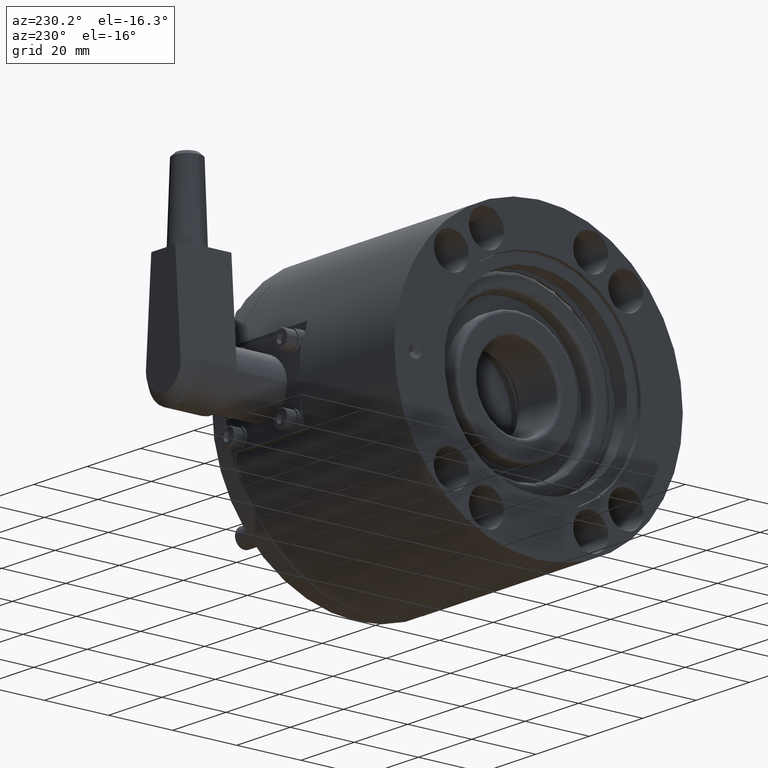
[diagram: clean part render]
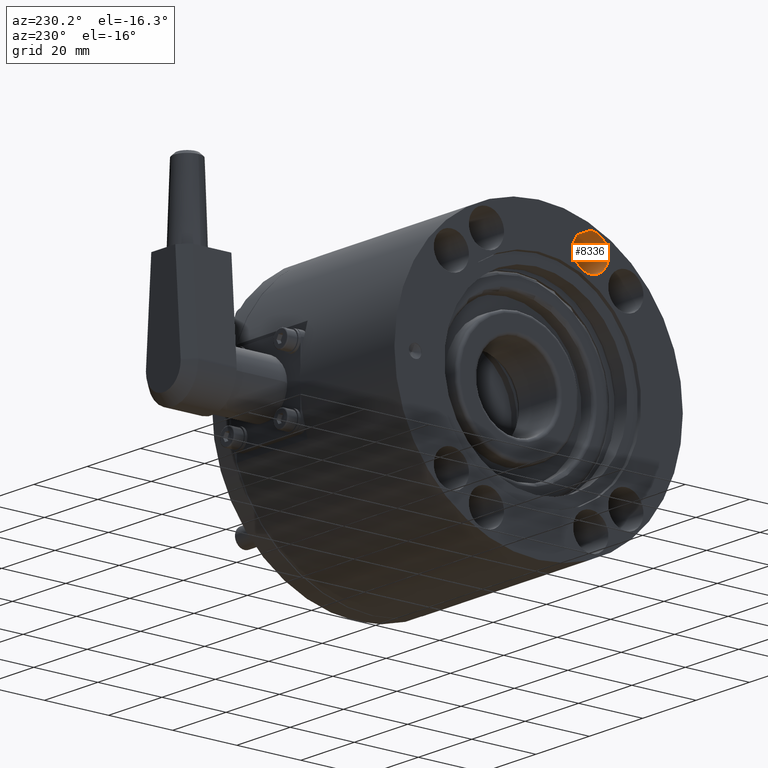
[diagram: same view with one face highlighted and labeled with its STEP entity id]
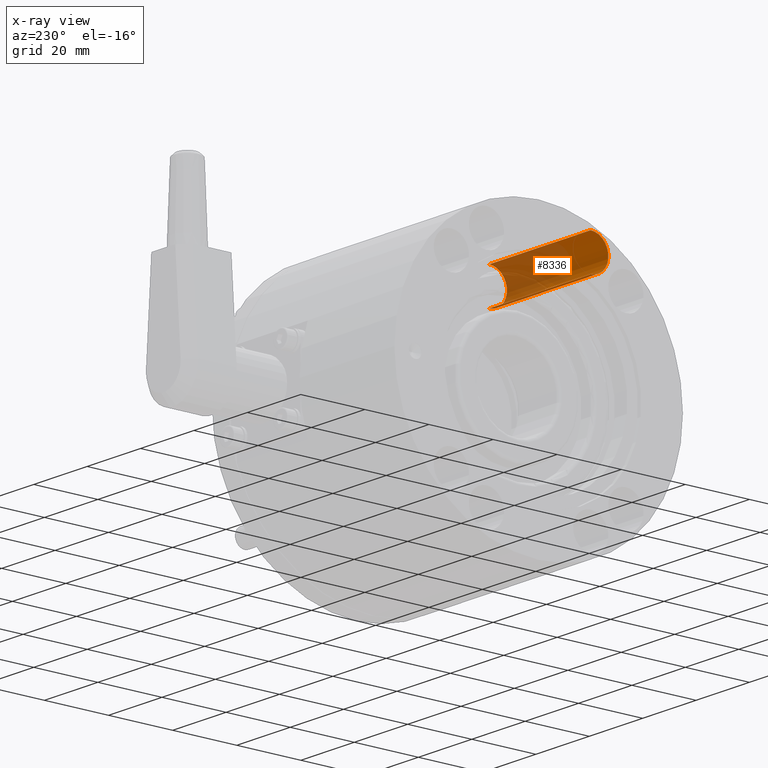
[diagram: x-ray of the same camera — body ghosted, the highlighted face saturated]
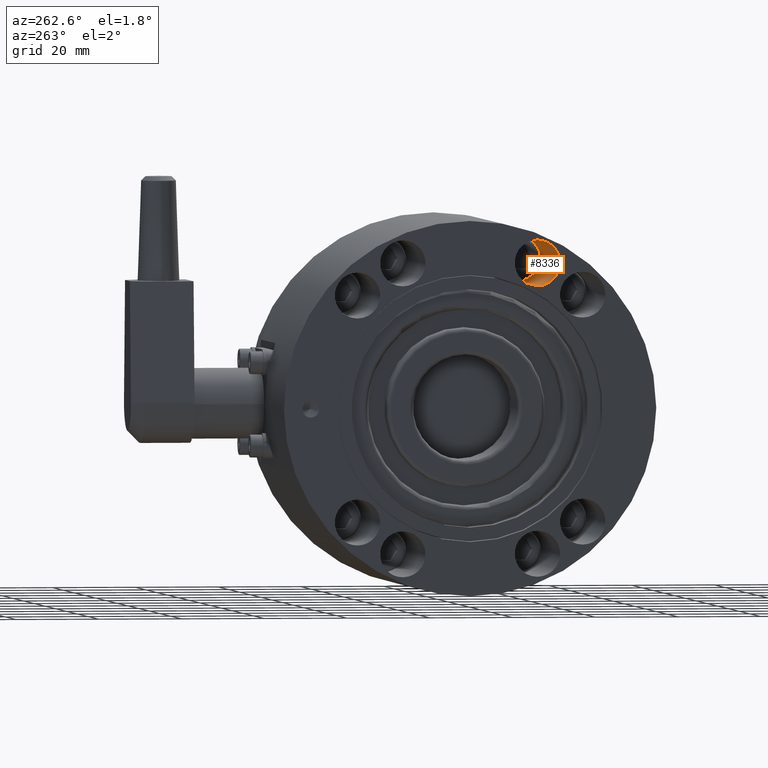
[diagram: same view with one face highlighted and labeled with its STEP entity id]
A machine part, auxiliary view. The second image highlights one B-rep face of the part: STEP entity #8336.
The next image is the same camera in x-ray: the body ghosted, the highlighted face saturated — about 62% of this face is hidden behind the body in this view.
A second angle (auxiliary view) of the same face is appended — the face is thin or edge-on in the first view.
In plain terms, the highlighted cylindrical surface (edge-blend (fillet) strip) has radius 5.5 mm, axis along (-1, 0, 0).
Its self-contained STEP definition (entity closure, byte-faithful):
#339 = VERTEX_POINT ( 'NONE', #8475 ) ;
#1299 = AXIS2_PLACEMENT_3D ( 'NONE', #1636, #12314, #5987 ) ;
#1636 = CARTESIAN_POINT ( 'NONE',  ( 24.00000000000000000, -16.27080307701696782, -34.89284980091102284 ) ) ;
#1668 = CARTESIAN_POINT ( 'NONE',  ( 62.00000000000000000, -16.27080307701696782, -34.89284980091102284 ) ) ;
#2398 = LINE ( 'NONE', #3897, #3905 ) ;
#2450 = VERTEX_POINT ( 'NONE', #8941 ) ;
#2459 = VERTEX_POINT ( 'NONE', #6935 ) ;
#2729 = DIRECTION ( 'NONE',  ( 1.000000000000000000, -0.000000000000000000, -0.000000000000000000 ) ) ;
#2838 = AXIS2_PLACEMENT_3D ( 'NONE', #7840, #10902, #8761 ) ;
#2969 = EDGE_LOOP ( 'NONE', ( #13120, #10975, #9472, #4920 ) ) ;
#3032 = EDGE_CURVE ( 'NONE', #2459, #8480, #10491, .T. ) ;
#3897 = CARTESIAN_POINT ( 'NONE',  ( 62.00000000000000000, -16.27080307701696782, -29.39284980091102994 ) ) ;
#3905 = VECTOR ( 'NONE', #12380, 1000.000000000000000 ) ;
#4920 = ORIENTED_EDGE ( 'NONE', *, *, #12707, .F. ) ;
#5166 = AXIS2_PLACEMENT_3D ( 'NONE', #1668, #2729, #8046 ) ;
#5987 = DIRECTION ( 'NONE',  ( 0.000000000000000000, 0.000000000000000000, -1.000000000000000000 ) ) ;
#6012 = DIRECTION ( 'NONE',  ( 1.000000000000000000, -0.000000000000000000, -0.000000000000000000 ) ) ;
#6935 = CARTESIAN_POINT ( 'NONE',  ( 24.00000000000000000, -16.27080307701696782, -29.39284980091102994 ) ) ;
#7220 = CARTESIAN_POINT ( 'NONE',  ( 62.00000000000000000, -16.27080307701696782, -40.39284980091101573 ) ) ;
#7547 = VECTOR ( 'NONE', #6012, 1000.000000000000000 ) ;
#7840 = CARTESIAN_POINT ( 'NONE',  ( 62.00000000000000000, -16.27080307701696782, -34.89284980091102284 ) ) ;
#7865 = LINE ( 'NONE', #7220, #7547 ) ;
#8046 = DIRECTION ( 'NONE',  ( 0.000000000000000000, 0.000000000000000000, -1.000000000000000000 ) ) ;
#8207 = CIRCLE ( 'NONE', #5166, 5.499999999999991118 ) ;
#8336 = ADVANCED_FACE ( 'NONE', ( #10264 ), #11259, .F. ) ;
#8475 = CARTESIAN_POINT ( 'NONE',  ( 62.00000000000000000, -16.27080307701696782, -29.39284980091102639 ) ) ;
#8480 = VERTEX_POINT ( 'NONE', #13270 ) ;
#8761 = DIRECTION ( 'NONE',  ( 0.000000000000000000, 0.000000000000000000, -1.000000000000000000 ) ) ;
#8941 = CARTESIAN_POINT ( 'NONE',  ( 62.00000000000000000, -16.27080307701696782, -40.39284980091101573 ) ) ;
#9472 = ORIENTED_EDGE ( 'NONE', *, *, #12082, .T. ) ;
#9848 = EDGE_CURVE ( 'NONE', #2459, #339, #2398, .T. ) ;
#10264 = FACE_OUTER_BOUND ( 'NONE', #2969, .T. ) ;
#10491 = CIRCLE ( 'NONE', #1299, 5.499999999999991118 ) ;
#10902 = DIRECTION ( 'NONE',  ( 1.000000000000000000, -0.000000000000000000, -0.000000000000000000 ) ) ;
#10975 = ORIENTED_EDGE ( 'NONE', *, *, #9848, .T. ) ;
#11259 = CYLINDRICAL_SURFACE ( 'NONE', #2838, 5.499999999999991118 ) ;
#12082 = EDGE_CURVE ( 'NONE', #339, #2450, #8207, .T. ) ;
#12314 = DIRECTION ( 'NONE',  ( 1.000000000000000000, -0.000000000000000000, -0.000000000000000000 ) ) ;
#12380 = DIRECTION ( 'NONE',  ( 1.000000000000000000, -0.000000000000000000, -0.000000000000000000 ) ) ;
#12707 = EDGE_CURVE ( 'NONE', #8480, #2450, #7865, .T. ) ;
#13120 = ORIENTED_EDGE ( 'NONE', *, *, #3032, .F. ) ;
#13270 = CARTESIAN_POINT ( 'NONE',  ( 24.00000000000000000, -16.27080307701696782, -40.39284980091101573 ) ) ;